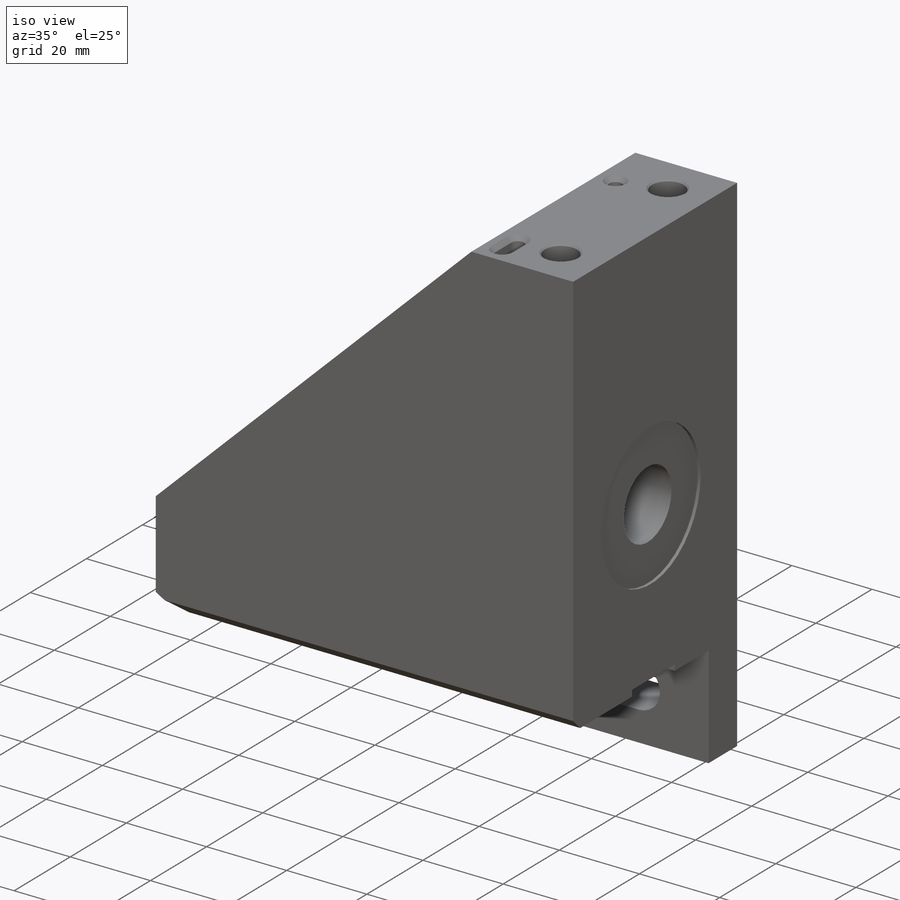
[diagram: iso view]
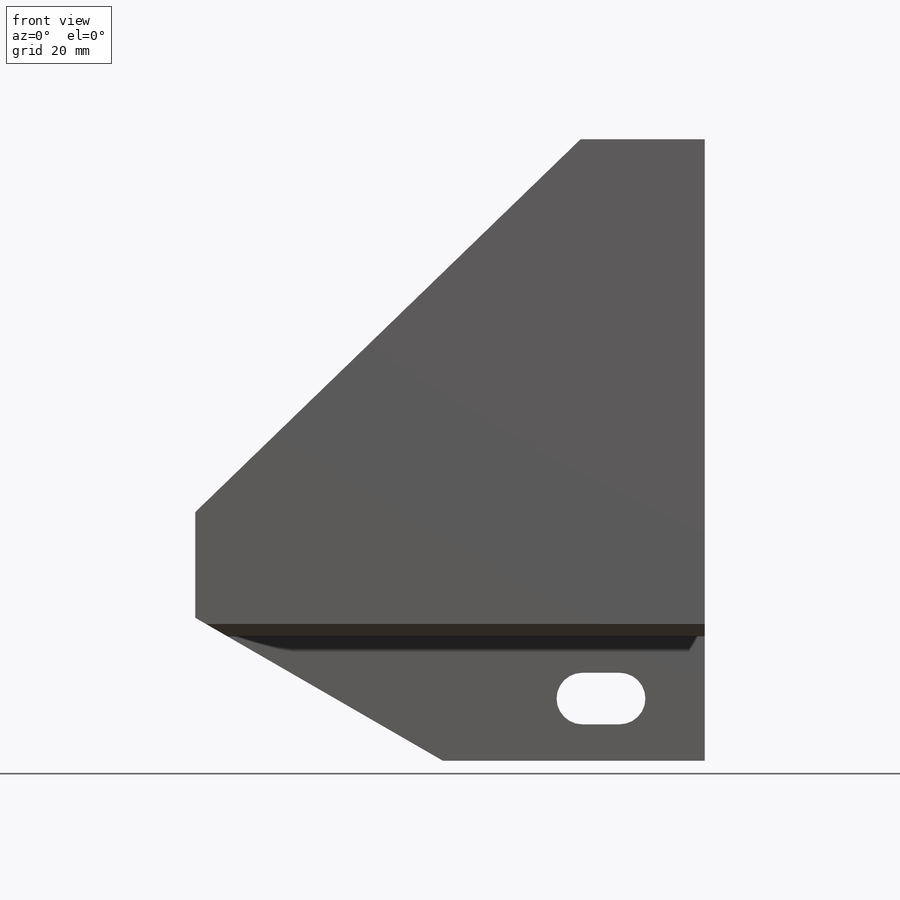
[diagram: front view]
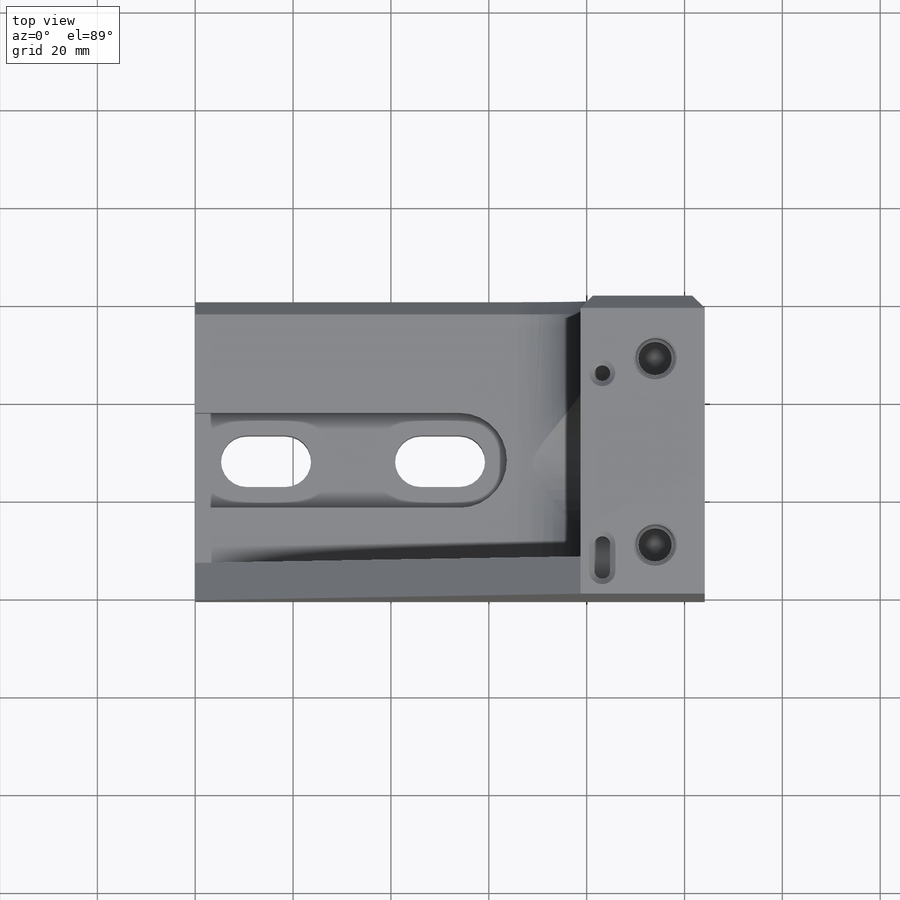
[diagram: top view]
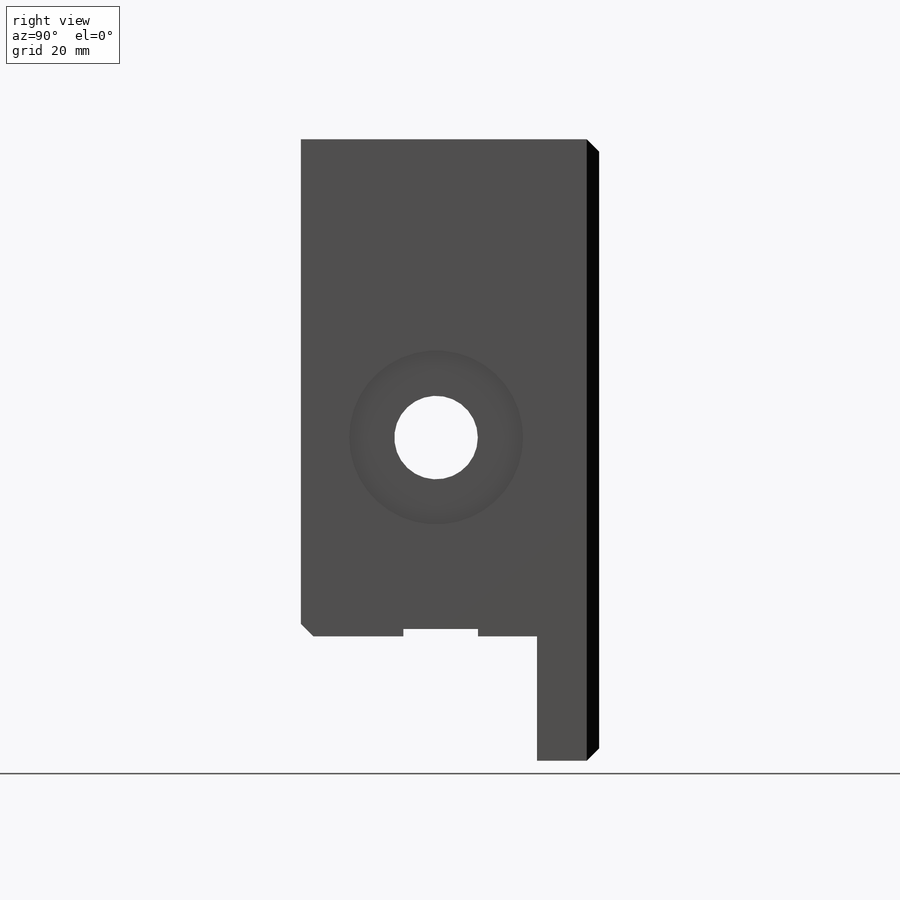
[diagram: right view]
SOLIDWORKS PART (.sldprt)
format: sldprt  version: not decoded by parser v0  size: 653,824 bytes
history: native  units: mm
features: sketch x18, cut_extrude x8, extrude x3, chamfer x3, hole x3, material x1, fillet x1 + 1 further entry (+14 scaffold rows collapsed)
feature tree (52):
  scaffold x14  (default folders/planes/origin — collapsed)
  material  "6061-T6 Al"
  "Origin"  ID=-1
  sketch  "Sketch1"  dims[D1=25.4mm D2=25.4mm D3=78.74mm D4=101.6mm]
  extrude  "Extrude1"  Depth=60.96mm
  sketch  "Sketch6"  dims[c1.D2=4.7117mm c1.D5=4.445mm c1.D3=10.541mm c1.D1=25.4mm c2.D3=12.7mm c2.D4=25.4mm c2.D5=7.874mm c2.D1=28.575mm c3.D3=38.1mm c3.D4=14.478mm c3.D6=48.26mm c3.D7=~9.134464mm c3.D2=10.541mm c4.D3=35.56mm c4.D4=54.102mm]
  cut_extrude  "Slots Horizontal"  [1 undecoded]
  chamfer  "Chamfer2"  Distance=3.81mm Angle=60deg
  sketch  "Sketch8"  dims[c1.D1=~43.733741mm c2.D1=30.0deg c2.D2=25.4mm]
  extrude  "Top overhang"  Depth=12.7mm
  sketch  "Sketch9"  dims[D5=5.2705mm D1=10.541mm D2=7.62mm D3=12.7mm D4=21.209mm]
  cut_extrude  "Slot Top"  [1 undecoded]
  sketch  "Sketch10"  dims[c1.D5=9.7155mm c1.D2=19.431mm c1.D3=19.431mm c1.D1=19.431mm c2.D3=22.6695mm c2.D4=53.975mm c2.D1=4.445mm]
  cut_extrude  "Slot Screw Head Clearance"  Depth=9.525mm
  sketch  "Sketch11"  dims[D1=~31.117252mm]
  extrude  "Bottom stiffener"  Depth=7.62mm
  fillet  "Fillet1"  Radius=12.7mm
  hole  "5/8 Clearance Hole1"  Diameter=17.06626mm Depth=104.14mm
  sketch  "Sketch3"  dims[D1=27.6352mm D2=40.64mm]
  sketch  "Sketch2"  dims[hole-wizard template sketch: 54 standard entries collapsed; hole parameters kept: c17.Thru Hole Dia.=~17.06626mm c17.Thru Hole Depth=104.14mm c17.Near C'Sink Dia.=~18.33626mm c17.D4=~3.666174mm c17.Near C'Sink Angle=90.0deg]
  sketch  "Sketch16"  dims[D1=35.56mm D2=50.8mm]
  cut_extrude  "Extrude3"  Depth=0.762mm
  sketch  "Sketch12"  dims[D1=29.845mm]
  cut_extrude  "1/2" Screw head clearance"  Depth=0.127mm
  sketch  "Sketch15"  dims[c1.D1=~17.996006mm c1.D2=~97.540886mm c2.D1=15.24mm c2.D2=7.62mm c2.D3=24.765mm c3.D2=24.765mm c3.D1=24.765mm c4.D2=15.24mm c4.D3=104.14mm]
  cut_extrude  "Extrude2"  Depth=1.524mm
  hole  "Tapped Hole for 1/4-20 Helicoil1"  Diameter=6.7564mm Depth=20.5232mm
  sketch  "Sketch14"  dims[c1.D1=15.24mm c1.D2=12.7mm c1.D3=38.1mm c2.D2=12.7mm]
  sketch  "Sketch13"  dims[hole-wizard template sketch: 27 standard entries collapsed; hole parameters kept: c8.Tap Drill Depth=20.5232mm c8.Thread Major Dia.=~8.09498mm c8.Thread Depth=11.6586mm c8.Near C'Sink Dia.=8.89mm c8.D6=~4.399409mm c8.Near C'Sink Angle=90.0deg c8.D7=~14.816244mm c8.Drill Angle=118.0deg]
  chamfer  "Chamfer3"  Distance=2.54mm Angle=45deg
  sketch  "Sketch17"  dims[D1=3.81mm D2=4.064mm]
  sketch  "Sketch18"  dims[c1.D2=~3.19024mm c1.D4=~3.19024mm c1.D5=~3.19024mm c1.D1=4.445mm c1.D3=5.08mm c2.D4=38.1mm c2.D5=6.35mm]
  cut_extrude  "Extrude4"  Depth=6.35mm
  hole  "1/8 (0.125) Diameter Hole1"  Diameter=3.19024mm Depth=9.525mm
  sketch  "Sketch23"  dims[c1.D2=6.7564mm c1.D1=10.795mm c2.D2=3.175mm]
  sketch  "Sketch22"  dims[hole-wizard template sketch: 46 standard entries collapsed; hole parameters above]
  sketch  "Sketch24"  dims[D1=5.5372mm D2=34.925mm]
  cut_extrude  "Cut-Extrude1"  Depth=9.525mm
  chamfer  "Chamfer4"  Distance=1.0795mm Angle=45deg
decode coverage: 34 of 36 modeling features carry decoded parameters; 1 rows unclassified (native names shown)
note: ~ marks probable driven/reference dimensions
note: 2 parameter values undecoded
note: suppression state not decoded; provenance and decode notes live in map.json
